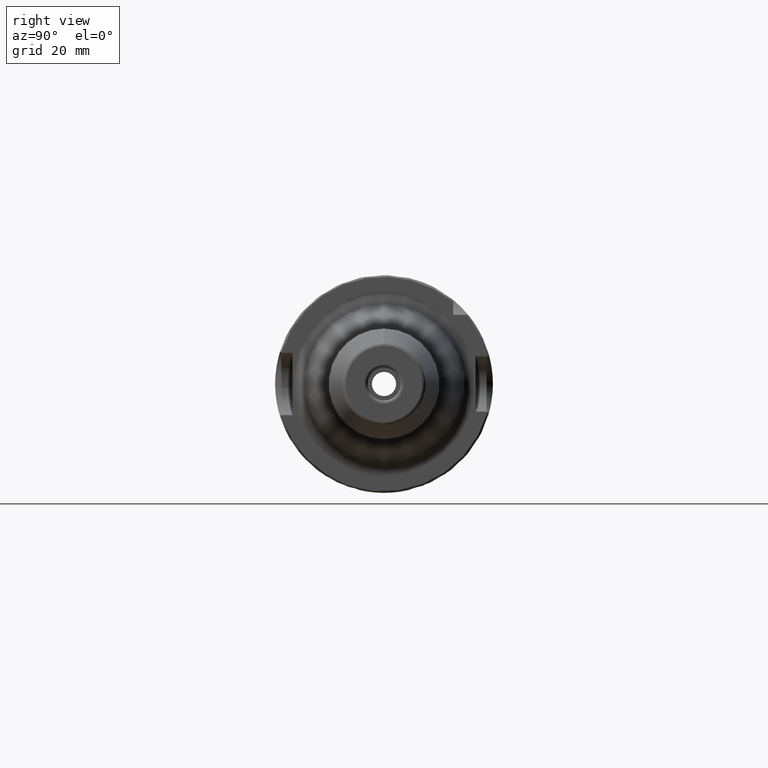
[diagram: clean part render]
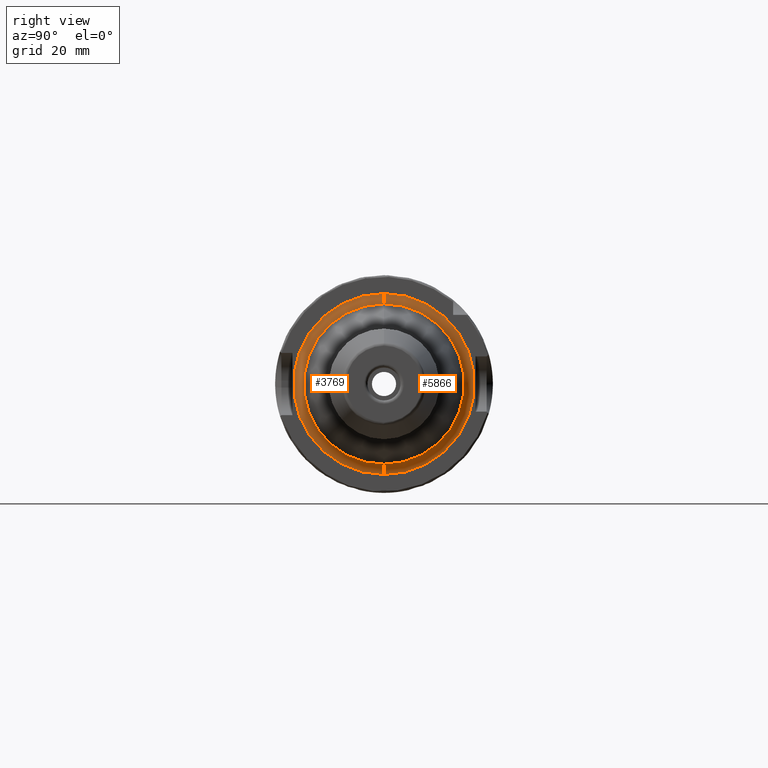
[diagram: same view with one multi-face feature highlighted, each face labeled with its STEP entity id]
A machine part, right view. The highlighted faces form ONE feature: a constant-radius fillet chain: 2 tangent blend faces with common blend radius 3 mm. The faces share edges in the B-rep.
Their STEP definitions:
[1] entity #5866 (Torus):
#643=CARTESIAN_POINT('',(2.9E1,0.E0,2.619706528738E1));
#644=DIRECTION('',(0.E0,1.E0,0.E0));
#645=DIRECTION('',(-1.391731009601E-1,0.E0,-9.902680687416E-1));
#646=AXIS2_PLACEMENT_3D('',#643,#644,#645);
#653=CARTESIAN_POINT('',(2.9E1,0.E0,-2.619706528738E1));
#654=DIRECTION('',(0.E0,-1.E0,0.E0));
#655=DIRECTION('',(-1.391731009601E-1,0.E0,9.902680687416E-1));
#656=AXIS2_PLACEMENT_3D('',#653,#654,#655);
#698=CARTESIAN_POINT('',(2.6E1,0.E0,0.E0));
#699=DIRECTION('',(1.E0,0.E0,0.E0));
#700=DIRECTION('',(0.E0,0.E0,-1.E0));
#701=AXIS2_PLACEMENT_3D('',#698,#699,#700);
#2501=CARTESIAN_POINT('',(2.858248069712E1,0.E0,0.E0));
#2502=DIRECTION('',(1.E0,0.E0,0.E0));
#2503=DIRECTION('',(0.E0,0.E0,-1.E0));
#2504=AXIS2_PLACEMENT_3D('',#2501,#2502,#2503);
#2980=CARTESIAN_POINT('',(2.858248069712E1,0.E0,-2.322626108115E1));
#2981=VERTEX_POINT('',#2980);
#3004=CARTESIAN_POINT('',(2.858248069712E1,0.E0,2.322626108115E1));
#3005=VERTEX_POINT('',#3004);
#3006=CARTESIAN_POINT('',(2.6E1,0.E0,-2.619706528738E1));
#3007=CARTESIAN_POINT('',(2.6E1,0.E0,2.619706528738E1));
#3008=VERTEX_POINT('',#3006);
#3009=VERTEX_POINT('',#3007);
#5855=CARTESIAN_POINT('',(2.9E1,0.E0,0.E0));
#5856=DIRECTION('',(1.E0,0.E0,0.E0));
#5857=DIRECTION('',(0.E0,0.E0,1.E0));
#5858=AXIS2_PLACEMENT_3D('',#5855,#5856,#5857);
#5859=TOROIDAL_SURFACE('',#5858,2.619706528738E1,3.E0);
#5860=ORIENTED_EDGE('',*,*,#3803,.F.);
#5861=ORIENTED_EDGE('',*,*,#3765,.F.);
#5862=ORIENTED_EDGE('',*,*,#3737,.T.);
#5863=ORIENTED_EDGE('',*,*,#3762,.T.);
#5864=EDGE_LOOP('',(#5860,#5861,#5862,#5863));
#5865=FACE_OUTER_BOUND('',#5864,.F.);
#5866=ADVANCED_FACE('',(#5865),#5859,.F.);
#647=CIRCLE('',#646,3.E0);
#657=CIRCLE('',#656,3.E0);
#702=CIRCLE('',#701,2.619706528738E1);
#2505=CIRCLE('',#2504,2.322626108115E1);
#3737=EDGE_CURVE('',#2981,#3005,#2505,.T.);
#3762=EDGE_CURVE('',#3005,#3009,#647,.T.);
#3765=EDGE_CURVE('',#2981,#3008,#657,.T.);
#3803=EDGE_CURVE('',#3008,#3009,#702,.T.);
[2] entity #3769 (Torus):
#643=CARTESIAN_POINT('',(2.9E1,0.E0,2.619706528738E1));
#644=DIRECTION('',(0.E0,1.E0,0.E0));
#645=DIRECTION('',(-1.391731009601E-1,0.E0,-9.902680687416E-1));
#646=AXIS2_PLACEMENT_3D('',#643,#644,#645);
#648=CARTESIAN_POINT('',(2.858248069712E1,0.E0,0.E0));
#649=DIRECTION('',(-1.E0,0.E0,0.E0));
#650=DIRECTION('',(0.E0,0.E0,-1.E0));
#651=AXIS2_PLACEMENT_3D('',#648,#649,#650);
#653=CARTESIAN_POINT('',(2.9E1,0.E0,-2.619706528738E1));
#654=DIRECTION('',(0.E0,-1.E0,0.E0));
#655=DIRECTION('',(-1.391731009601E-1,0.E0,9.902680687416E-1));
#656=AXIS2_PLACEMENT_3D('',#653,#654,#655);
#703=CARTESIAN_POINT('',(2.6E1,0.E0,0.E0));
#704=DIRECTION('',(1.E0,0.E0,0.E0));
#705=DIRECTION('',(0.E0,0.E0,1.E0));
#706=AXIS2_PLACEMENT_3D('',#703,#704,#705);
#2980=CARTESIAN_POINT('',(2.858248069712E1,0.E0,-2.322626108115E1));
#2981=VERTEX_POINT('',#2980);
#3004=CARTESIAN_POINT('',(2.858248069712E1,0.E0,2.322626108115E1));
#3005=VERTEX_POINT('',#3004);
#3006=CARTESIAN_POINT('',(2.6E1,0.E0,-2.619706528738E1));
#3007=CARTESIAN_POINT('',(2.6E1,0.E0,2.619706528738E1));
#3008=VERTEX_POINT('',#3006);
#3009=VERTEX_POINT('',#3007);
#3755=CARTESIAN_POINT('',(2.9E1,0.E0,0.E0));
#3756=DIRECTION('',(1.E0,0.E0,0.E0));
#3757=DIRECTION('',(0.E0,0.E0,1.E0));
#3758=AXIS2_PLACEMENT_3D('',#3755,#3756,#3757);
#3759=TOROIDAL_SURFACE('',#3758,2.619706528738E1,3.E0);
#3761=ORIENTED_EDGE('',*,*,#3760,.F.);
#3763=ORIENTED_EDGE('',*,*,#3762,.F.);
#3764=ORIENTED_EDGE('',*,*,#3748,.F.);
#3766=ORIENTED_EDGE('',*,*,#3765,.T.);
#3767=EDGE_LOOP('',(#3761,#3763,#3764,#3766));
#3768=FACE_OUTER_BOUND('',#3767,.F.);
#3769=ADVANCED_FACE('',(#3768),#3759,.F.);
#647=CIRCLE('',#646,3.E0);
#652=CIRCLE('',#651,2.322626108115E1);
#657=CIRCLE('',#656,3.E0);
#707=CIRCLE('',#706,2.619706528738E1);
#3748=EDGE_CURVE('',#2981,#3005,#652,.T.);
#3760=EDGE_CURVE('',#3009,#3008,#707,.T.);
#3762=EDGE_CURVE('',#3005,#3009,#647,.T.);
#3765=EDGE_CURVE('',#2981,#3008,#657,.T.);